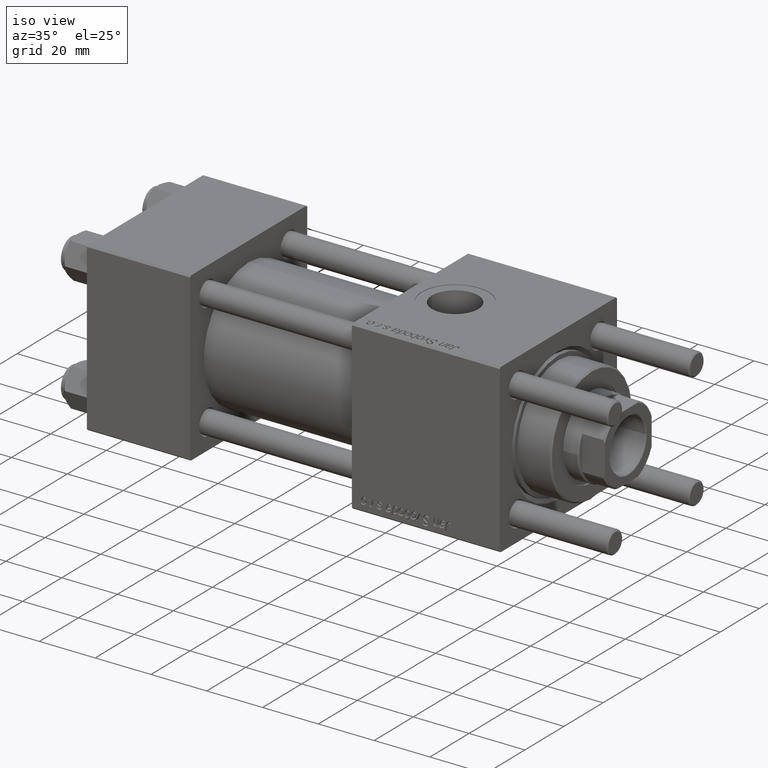
[diagram: clean part render]
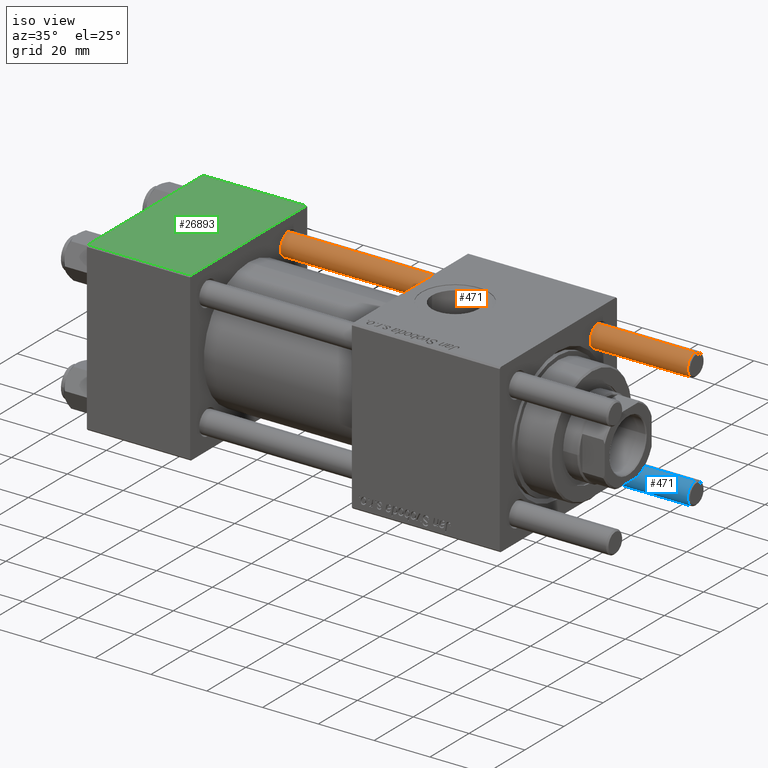
[diagram: same view with three faces highlighted in distinct colors, each labeled with its STEP entity id]
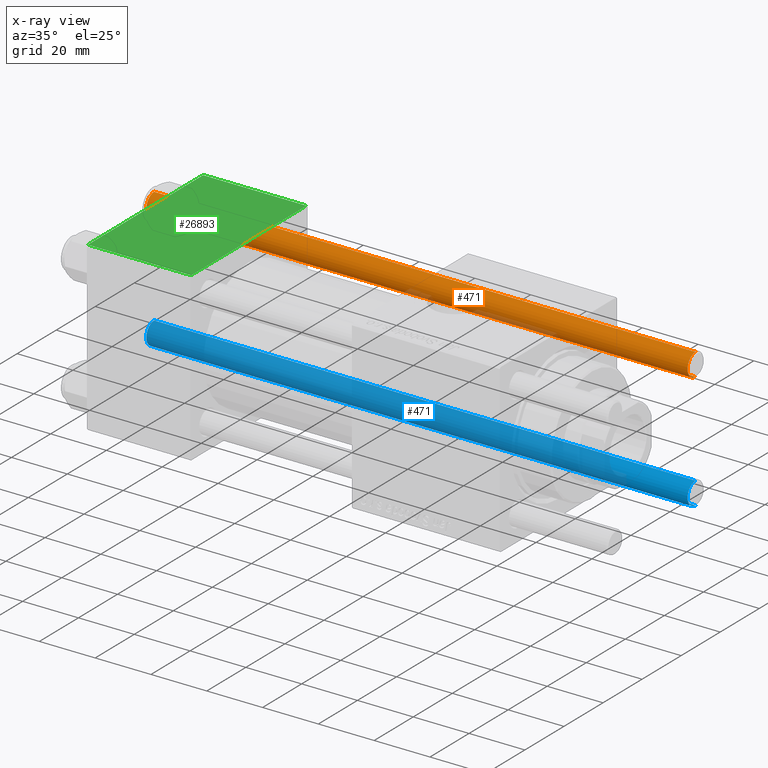
[diagram: x-ray of the same camera — body ghosted, the three highlighted faces saturated]
A machine part, iso view with three faces highlighted in distinct colors.
The next image is the same camera in x-ray (body ghosted, the three faces saturated) — at least one of them is partly hidden behind the body in this view.
Their STEP definitions:

[orange] entity #471 — the highlighted cylindrical surface (edge-blend (fillet) strip) has radius 4 mm, axis along (1, -0, -0).
#471 = ADVANCED_FACE ( 'NONE', ( #9792 ), #54501, .T. ) ;
#2406 = ORIENTED_EDGE ( 'NONE', *, *, #5249, .T. ) ;
#2433 = EDGE_CURVE ( 'NONE', #22576, #23066, #48038, .T. ) ;
#5056 = DIRECTION ( 'NONE',  ( -1.000000000000000000, 0.000000000000000000, 0.000000000000000000 ) ) ;
#5249 = EDGE_CURVE ( 'NONE', #55629, #22576, #31771, .T. ) ;
#6744 = DIRECTION ( 'NONE',  ( 0.000000000000000000, 0.000000000000000000, -1.000000000000000000 ) ) ;
#7311 = CARTESIAN_POINT ( 'NONE',  ( 4.000000000000000000, 4.898587196589412829E-16, 194.5000000000000568 ) ) ;
#9255 = DIRECTION ( 'NONE',  ( -0.000000000000000000, -0.000000000000000000, -1.000000000000000000 ) ) ;
#9792 = FACE_OUTER_BOUND ( 'NONE', #23872, .T. ) ;
#10896 = CARTESIAN_POINT ( 'NONE',  ( 0.000000000000000000, 0.000000000000000000, 194.5000000000000568 ) ) ;
#11226 = VECTOR ( 'NONE', #9255, 1000.000000000000000 ) ;
#11980 = CARTESIAN_POINT ( 'NONE',  ( 4.000000000000000000, 4.898587196589412829E-16, 0.5000000000000004441 ) ) ;
#15462 = EDGE_CURVE ( 'NONE', #28871, #55629, #26562, .T. ) ;
#20090 = DIRECTION ( 'NONE',  ( 1.000000000000000000, 0.000000000000000000, 0.000000000000000000 ) ) ;
#20645 = ORIENTED_EDGE ( 'NONE', *, *, #2433, .T. ) ;
#20703 = LINE ( 'NONE', #47900, #29999 ) ;
#22576 = VERTEX_POINT ( 'NONE', #43566 ) ;
#23066 = VERTEX_POINT ( 'NONE', #11980 ) ;
#23148 = CARTESIAN_POINT ( 'NONE',  ( 0.000000000000000000, 0.000000000000000000, 195.0000000000000000 ) ) ;
#23872 = EDGE_LOOP ( 'NONE', ( #50309, #39113, #2406, #20645 ) ) ;
#26562 = CIRCLE ( 'NONE', #39779, 4.000000000000000000 ) ;
#28871 = VERTEX_POINT ( 'NONE', #7311 ) ;
#29999 = VECTOR ( 'NONE', #38455, 1000.000000000000000 ) ;
#31771 = LINE ( 'NONE', #49814, #11226 ) ;
#37660 = AXIS2_PLACEMENT_3D ( 'NONE', #38925, #43650, #48072 ) ;
#38455 = DIRECTION ( 'NONE',  ( -0.000000000000000000, -0.000000000000000000, -1.000000000000000000 ) ) ;
#38925 = CARTESIAN_POINT ( 'NONE',  ( 0.000000000000000000, 0.000000000000000000, 0.5000000000000004441 ) ) ;
#39113 = ORIENTED_EDGE ( 'NONE', *, *, #15462, .T. ) ;
#39779 = AXIS2_PLACEMENT_3D ( 'NONE', #10896, #6744, #20090 ) ;
#41187 = DIRECTION ( 'NONE',  ( -0.000000000000000000, -0.000000000000000000, -1.000000000000000000 ) ) ;
#43566 = CARTESIAN_POINT ( 'NONE',  ( -4.000000000000000000, 0.000000000000000000, 0.5000000000000004441 ) ) ;
#43650 = DIRECTION ( 'NONE',  ( -0.000000000000000000, -0.000000000000000000, 1.000000000000000000 ) ) ;
#46293 = EDGE_CURVE ( 'NONE', #28871, #23066, #20703, .T. ) ;
#47900 = CARTESIAN_POINT ( 'NONE',  ( 4.000000000000000000, 4.898587196589412829E-16, 195.0000000000000000 ) ) ;
#47989 = AXIS2_PLACEMENT_3D ( 'NONE', #23148, #41187, #5056 ) ;
#48038 = CIRCLE ( 'NONE', #37660, 4.000000000000000000 ) ;
#48072 = DIRECTION ( 'NONE',  ( 1.000000000000000000, 0.000000000000000000, 0.000000000000000000 ) ) ;
#49657 = CARTESIAN_POINT ( 'NONE',  ( -4.000000000000000000, 0.000000000000000000, 194.5000000000000568 ) ) ;
#49814 = CARTESIAN_POINT ( 'NONE',  ( -4.000000000000000000, 0.000000000000000000, 195.0000000000000000 ) ) ;
#50309 = ORIENTED_EDGE ( 'NONE', *, *, #46293, .F. ) ;
#54501 = CYLINDRICAL_SURFACE ( 'NONE', #47989, 4.000000000000000000 ) ;
#55629 = VERTEX_POINT ( 'NONE', #49657 ) ;

[blue] entity #471 — the highlighted cylindrical surface (edge-blend (fillet) strip) has radius 4 mm, axis along (-1, -0, 0).
#471 = ADVANCED_FACE ( 'NONE', ( #9792 ), #54501, .T. ) ;
#2406 = ORIENTED_EDGE ( 'NONE', *, *, #5249, .T. ) ;
#2433 = EDGE_CURVE ( 'NONE', #22576, #23066, #48038, .T. ) ;
#5056 = DIRECTION ( 'NONE',  ( -1.000000000000000000, 0.000000000000000000, 0.000000000000000000 ) ) ;
#5249 = EDGE_CURVE ( 'NONE', #55629, #22576, #31771, .T. ) ;
#6744 = DIRECTION ( 'NONE',  ( 0.000000000000000000, 0.000000000000000000, -1.000000000000000000 ) ) ;
#7311 = CARTESIAN_POINT ( 'NONE',  ( 4.000000000000000000, 4.898587196589412829E-16, 194.5000000000000568 ) ) ;
#9255 = DIRECTION ( 'NONE',  ( -0.000000000000000000, -0.000000000000000000, -1.000000000000000000 ) ) ;
#9792 = FACE_OUTER_BOUND ( 'NONE', #23872, .T. ) ;
#10896 = CARTESIAN_POINT ( 'NONE',  ( 0.000000000000000000, 0.000000000000000000, 194.5000000000000568 ) ) ;
#11226 = VECTOR ( 'NONE', #9255, 1000.000000000000000 ) ;
#11980 = CARTESIAN_POINT ( 'NONE',  ( 4.000000000000000000, 4.898587196589412829E-16, 0.5000000000000004441 ) ) ;
#15462 = EDGE_CURVE ( 'NONE', #28871, #55629, #26562, .T. ) ;
#20090 = DIRECTION ( 'NONE',  ( 1.000000000000000000, 0.000000000000000000, 0.000000000000000000 ) ) ;
#20645 = ORIENTED_EDGE ( 'NONE', *, *, #2433, .T. ) ;
#20703 = LINE ( 'NONE', #47900, #29999 ) ;
#22576 = VERTEX_POINT ( 'NONE', #43566 ) ;
#23066 = VERTEX_POINT ( 'NONE', #11980 ) ;
#23148 = CARTESIAN_POINT ( 'NONE',  ( 0.000000000000000000, 0.000000000000000000, 195.0000000000000000 ) ) ;
#23872 = EDGE_LOOP ( 'NONE', ( #50309, #39113, #2406, #20645 ) ) ;
#26562 = CIRCLE ( 'NONE', #39779, 4.000000000000000000 ) ;
#28871 = VERTEX_POINT ( 'NONE', #7311 ) ;
#29999 = VECTOR ( 'NONE', #38455, 1000.000000000000000 ) ;
#31771 = LINE ( 'NONE', #49814, #11226 ) ;
#37660 = AXIS2_PLACEMENT_3D ( 'NONE', #38925, #43650, #48072 ) ;
#38455 = DIRECTION ( 'NONE',  ( -0.000000000000000000, -0.000000000000000000, -1.000000000000000000 ) ) ;
#38925 = CARTESIAN_POINT ( 'NONE',  ( 0.000000000000000000, 0.000000000000000000, 0.5000000000000004441 ) ) ;
#39113 = ORIENTED_EDGE ( 'NONE', *, *, #15462, .T. ) ;
#39779 = AXIS2_PLACEMENT_3D ( 'NONE', #10896, #6744, #20090 ) ;
#41187 = DIRECTION ( 'NONE',  ( -0.000000000000000000, -0.000000000000000000, -1.000000000000000000 ) ) ;
#43566 = CARTESIAN_POINT ( 'NONE',  ( -4.000000000000000000, 0.000000000000000000, 0.5000000000000004441 ) ) ;
#43650 = DIRECTION ( 'NONE',  ( -0.000000000000000000, -0.000000000000000000, 1.000000000000000000 ) ) ;
#46293 = EDGE_CURVE ( 'NONE', #28871, #23066, #20703, .T. ) ;
#47900 = CARTESIAN_POINT ( 'NONE',  ( 4.000000000000000000, 4.898587196589412829E-16, 195.0000000000000000 ) ) ;
#47989 = AXIS2_PLACEMENT_3D ( 'NONE', #23148, #41187, #5056 ) ;
#48038 = CIRCLE ( 'NONE', #37660, 4.000000000000000000 ) ;
#48072 = DIRECTION ( 'NONE',  ( 1.000000000000000000, 0.000000000000000000, 0.000000000000000000 ) ) ;
#49657 = CARTESIAN_POINT ( 'NONE',  ( -4.000000000000000000, 0.000000000000000000, 194.5000000000000568 ) ) ;
#49814 = CARTESIAN_POINT ( 'NONE',  ( -4.000000000000000000, 0.000000000000000000, 195.0000000000000000 ) ) ;
#50309 = ORIENTED_EDGE ( 'NONE', *, *, #46293, .F. ) ;
#54501 = CYLINDRICAL_SURFACE ( 'NONE', #47989, 4.000000000000000000 ) ;
#55629 = VERTEX_POINT ( 'NONE', #49657 ) ;

[green] entity #26893 — the highlighted planar face has unit normal (0, 0, -1).
#433 = CARTESIAN_POINT ( 'NONE',  ( 37.00000000000000000, -29.49999999999998579, 29.99999999999999289 ) ) ;
#3172 = FACE_OUTER_BOUND ( 'NONE', #13116, .T. ) ;
#3583 = LINE ( 'NONE', #39721, #19198 ) ;
#4253 = CARTESIAN_POINT ( 'NONE',  ( 37.00000000000000000, -29.50000000000000000, 29.99999999999999289 ) ) ;
#6987 = ORIENTED_EDGE ( 'NONE', *, *, #33047, .F. ) ;
#9274 = DIRECTION ( 'NONE',  ( 1.000000000000000000, 0.000000000000000000, 0.000000000000000000 ) ) ;
#11970 = ORIENTED_EDGE ( 'NONE', *, *, #53089, .T. ) ;
#13095 = CARTESIAN_POINT ( 'NONE',  ( 37.00000000000000000, 29.49999999999999289, 30.00000000000000000 ) ) ;
#13116 = EDGE_LOOP ( 'NONE', ( #40377, #24936, #6987, #11970 ) ) ;
#17119 = PLANE ( 'NONE',  #28820 ) ;
#19198 = VECTOR ( 'NONE', #24933, 1000.000000000000000 ) ;
#19732 = VECTOR ( 'NONE', #36339, 1000.000000000000000 ) ;
#20976 = CARTESIAN_POINT ( 'NONE',  ( 37.00000000000000000, 29.99999999999999289, 30.00000000000000000 ) ) ;
#21770 = VERTEX_POINT ( 'NONE', #433 ) ;
#24712 = VERTEX_POINT ( 'NONE', #48765 ) ;
#24933 = DIRECTION ( 'NONE',  ( 0.000000000000000000, -1.000000000000000000, -1.156482317317871725E-16 ) ) ;
#24936 = ORIENTED_EDGE ( 'NONE', *, *, #43294, .T. ) ;
#25403 = DIRECTION ( 'NONE',  ( 0.000000000000000000, 1.156482317317871725E-16, -1.000000000000000000 ) ) ;
#26778 = LINE ( 'NONE', #4253, #27039 ) ;
#26893 = ADVANCED_FACE ( 'NONE', ( #3172 ), #17119, .F. ) ;
#27039 = VECTOR ( 'NONE', #9274, 1000.000000000000000 ) ;
#27170 = CARTESIAN_POINT ( 'NONE',  ( 0.000000000000000000, 29.99999999999999289, 30.00000000000000000 ) ) ;
#28327 = VERTEX_POINT ( 'NONE', #42479 ) ;
#28820 = AXIS2_PLACEMENT_3D ( 'NONE', #20976, #25403, #48167 ) ;
#29338 = VERTEX_POINT ( 'NONE', #13095 ) ;
#33047 = EDGE_CURVE ( 'NONE', #29338, #21770, #3583, .T. ) ;
#36339 = DIRECTION ( 'NONE',  ( 0.000000000000000000, -1.000000000000000000, -1.156482317317871725E-16 ) ) ;
#38567 = VECTOR ( 'NONE', #54059, 1000.000000000000000 ) ;
#39721 = CARTESIAN_POINT ( 'NONE',  ( 37.00000000000000000, 29.99999999999999289, 30.00000000000000000 ) ) ;
#40162 = LINE ( 'NONE', #58216, #38567 ) ;
#40377 = ORIENTED_EDGE ( 'NONE', *, *, #54628, .T. ) ;
#40784 = LINE ( 'NONE', #27170, #19732 ) ;
#42479 = CARTESIAN_POINT ( 'NONE',  ( 0.000000000000000000, 29.49999999999999289, 30.00000000000000000 ) ) ;
#43294 = EDGE_CURVE ( 'NONE', #24712, #21770, #26778, .T. ) ;
#48167 = DIRECTION ( 'NONE',  ( 0.000000000000000000, 1.000000000000000000, 1.156482317317871725E-16 ) ) ;
#48765 = CARTESIAN_POINT ( 'NONE',  ( 0.000000000000000000, -29.49999999999998579, 29.99999999999999289 ) ) ;
#53089 = EDGE_CURVE ( 'NONE', #29338, #28327, #40162, .T. ) ;
#54059 = DIRECTION ( 'NONE',  ( -1.000000000000000000, 0.000000000000000000, 0.000000000000000000 ) ) ;
#54628 = EDGE_CURVE ( 'NONE', #28327, #24712, #40784, .T. ) ;
#58216 = CARTESIAN_POINT ( 'NONE',  ( 0.000000000000000000, 29.49999999999999289, 30.00000000000000000 ) ) ;